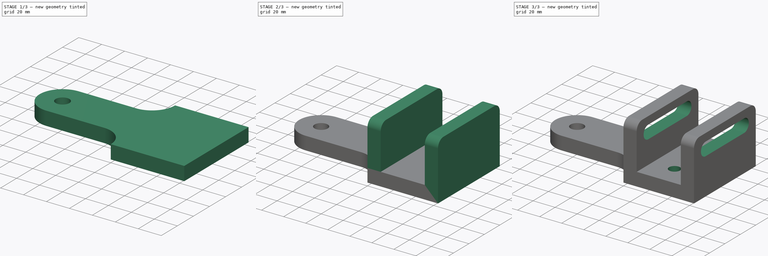
[diagram: build sequence overview — one tinted view per stage of 3, left to right]
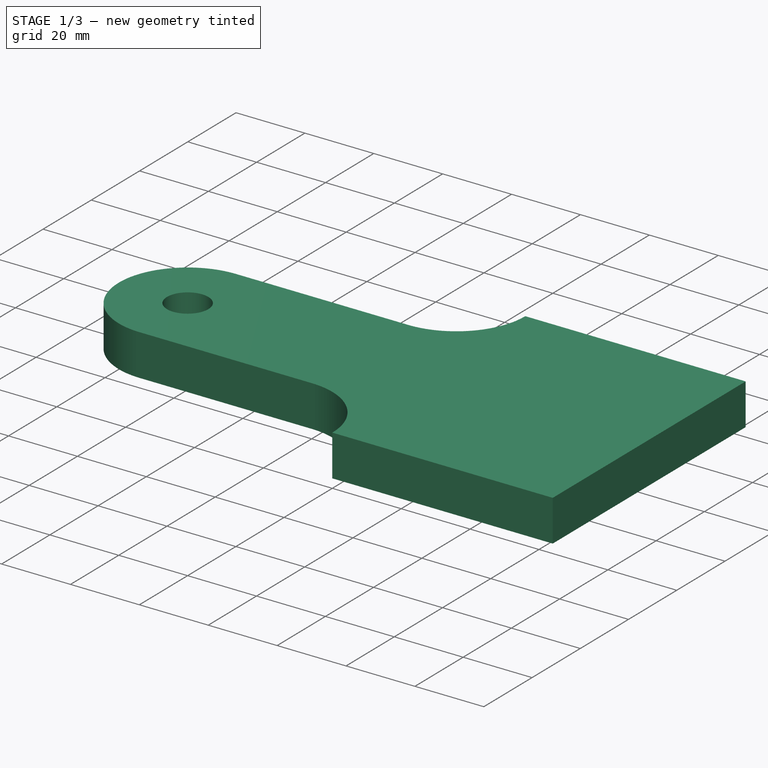
[diagram: stage 1 of 3 — iso view after this stage's code; geometry added in this stage tinted green]
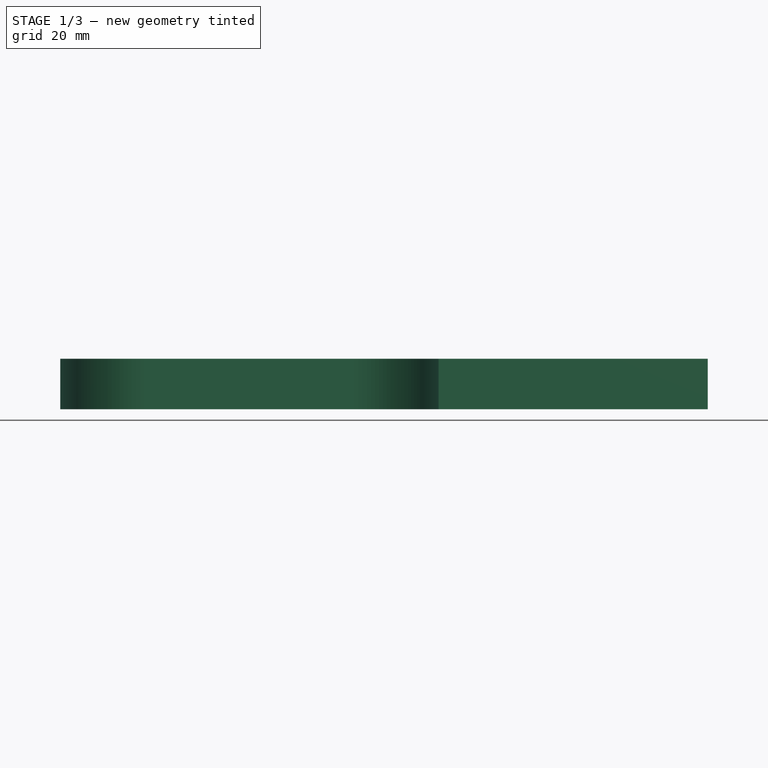
[diagram: stage 1 of 3 — front view after this stage's code; geometry added in this stage tinted green]
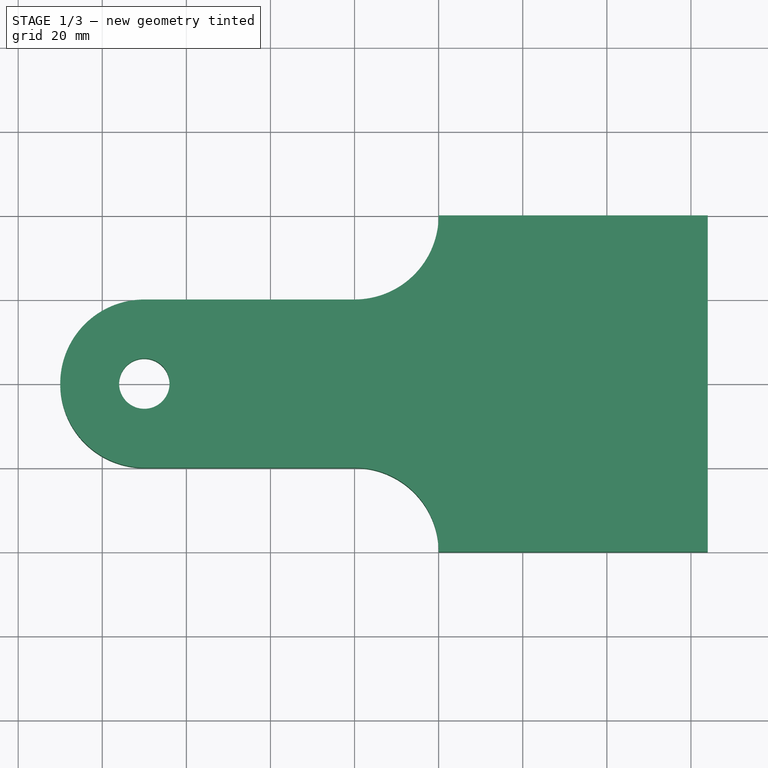
[diagram: stage 1 of 3 — top view after this stage's code; geometry added in this stage tinted green]
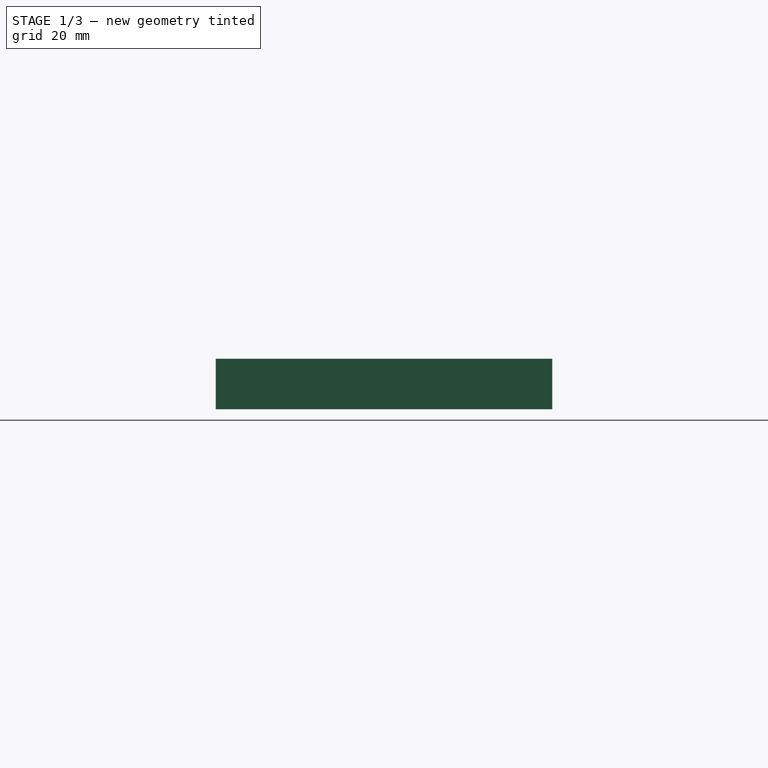
[diagram: stage 1 of 3 — right view after this stage's code; geometry added in this stage tinted green]
FCSTD DOCUMENT  (FreeCAD 0.17R9467 (Git))
Label: Beginner
License: All rights reserved
LicenseURL: http://en.wikipedia.org/wiki/All_rights_reserved
objects: Sketcher::SketchObject×6, PartDesign::Pocket×4, PartDesign::Pad×2, PartDesign::Plane×1, PartDesign::Body×1
note: 20 computed .brp shape members not serialized (recipe doc carries the construction recipe); baked Part::Feature solids carry a one-line shape summary decoded from their .brp

FEATURE [Sketcher::SketchObject] Sketch
  MapMode = 5
  Support = -> [XY_Plane]
  sketch-geometry (8):
    g0: LineSegment StartX=0 StartY=40 StartZ=0 EndX=64 EndY=40 EndZ=0
    g1: LineSegment StartX=64 StartY=40 StartZ=0 EndX=64 EndY=-40 EndZ=0
    g2: LineSegment StartX=64 StartY=-40 StartZ=0 EndX=0 EndY=-40 EndZ=0
    g3: ArcOfCircle CenterX=-20 CenterY=40 CenterZ=0 NormalX=0 NormalY=0 NormalZ=1 Radius=20 StartAngle=4.71239 EndAngle=6.28319
    g4: ArcOfCircle CenterX=-20 CenterY=-40 CenterZ=0 NormalX=0 NormalY=0 NormalZ=1 Radius=20 StartAngle=0 EndAngle=1.5708
    g5: ArcOfCircle CenterX=-70 CenterY=0 CenterZ=0 NormalX=0 NormalY=0 NormalZ=1 Radius=20 StartAngle=1.5708 EndAngle=4.71239
    g6: LineSegment StartX=-70 StartY=-20 StartZ=0 EndX=-20 EndY=-20 EndZ=0
    g7: LineSegment StartX=-70 StartY=20 StartZ=0 EndX=-19.9999 EndY=20 EndZ=0
  constraints (27):
    c: Coincident(g0,g1)
    c: Coincident(g1,g2)
    c: Horizontal(g0)
    c: Horizontal(g2)
    c: Vertical(g1)
    c: Coincident(g3,g0)
    c: Coincident(g4,g2)
    c: PointOnObject(g5,g-1)
    c: Horizontal(g6)
    c: Horizontal(g7)
    c: Coincident(g3,g7)
    c: Coincident(g5,g7)
    c: Coincident(g5,g6)
    c: Coincident(g4,g6)
    c: Tangent(g4,g6)
    c: Tangent(g3,g7)
    c: Perpendicular(g3,g0)
    c: Perpendicular(g4,g2)
    c: Tangent(g5,g6)
    c: Tangent(g7,g5)
    c: PointOnObject(g0,g-2)
    c: PointOnObject(g2,g-2)
    c: Symmetric(g0,g2,g-1)
    c: Radius(g4) = 20
    c: Radius(g5) = 20
    c: DistanceX(g5,g-1) = 70
    c: DistanceX(g0,g0) = 64
FEATURE [PartDesign::Pad] Pad
  Length = 12
  Length2 = 100
  Profile = -> Sketch
  Type = 0
FEATURE [PartDesign::Plane] DatumPlane
  MapMode = 5
  Placement = pos=(0,0,12) rot=(0,0,1;0rad)
  Support = -> [XY_Plane]
  superPlacement = pos=(0,0,12) rot=(0,0,1;0rad)
FEATURE [Sketcher::SketchObject] Sketch001
  MapMode = 5
  Placement = pos=(0,0,12) rot=(0,0,1;0rad)
  Support = -> [DatumPlane]
  sketch-geometry (1):
    g0: Circle CenterX=-70 CenterY=0 CenterZ=0 NormalX=0 NormalY=0 NormalZ=1 Radius=6
  constraints (3):
    c: PointOnObject(g0,g-1)
    c: DistanceX(g0,g-1) = 70
    c: Radius(g0) = 6
FEATURE [PartDesign::Pocket] Pocket
  BaseFeature = -> Pad
  Length = 5
  Profile = -> Sketch001
  Type = 1
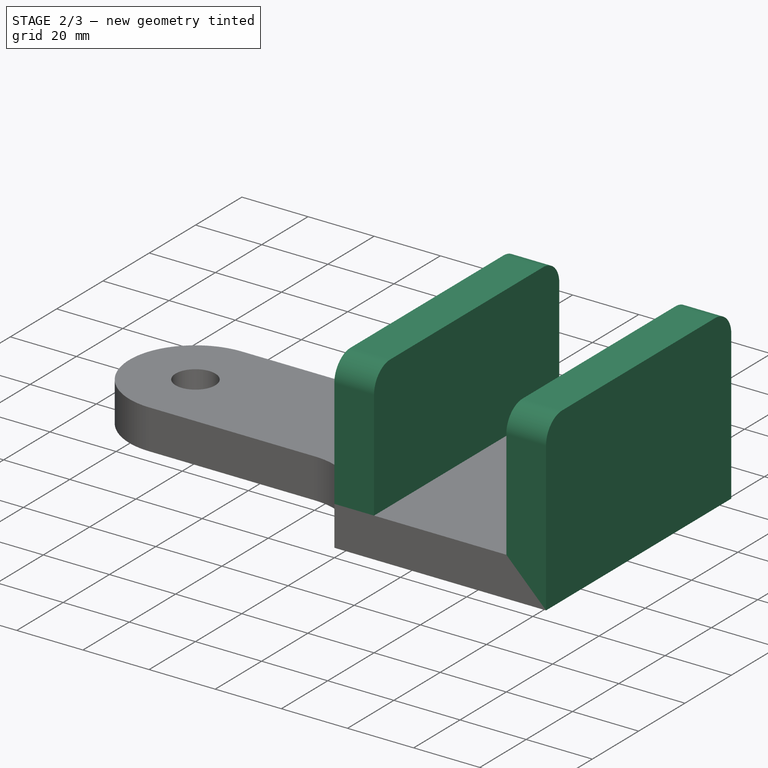
[diagram: stage 2 of 3 — iso view after this stage's code; geometry added in this stage tinted green]
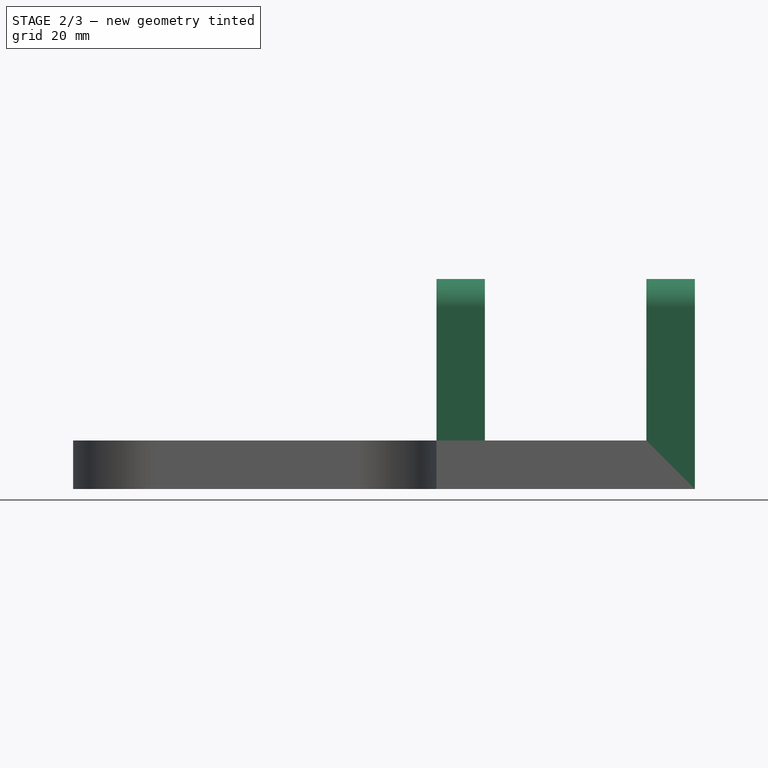
[diagram: stage 2 of 3 — front view after this stage's code; geometry added in this stage tinted green]
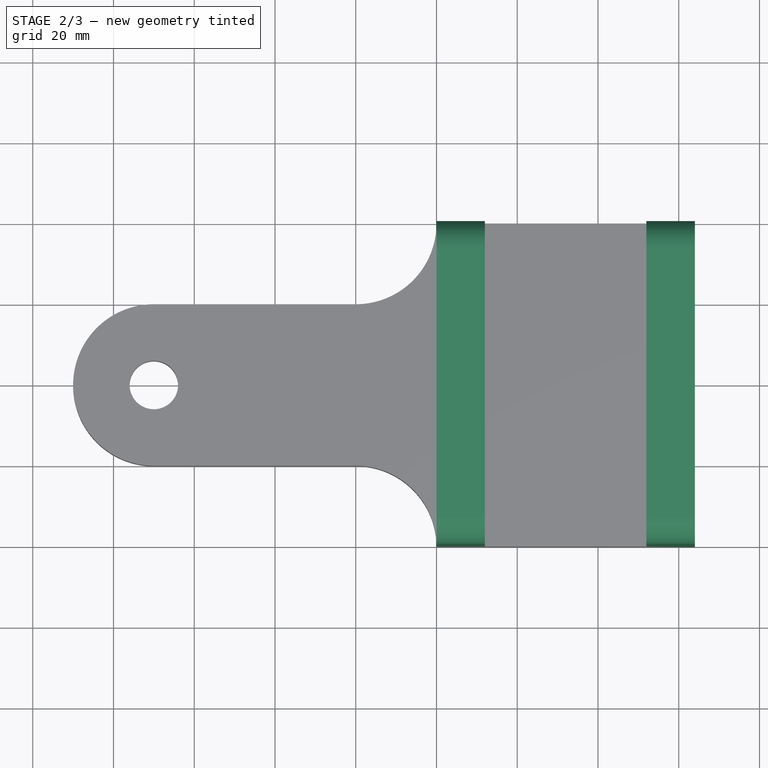
[diagram: stage 2 of 3 — top view after this stage's code; geometry added in this stage tinted green]
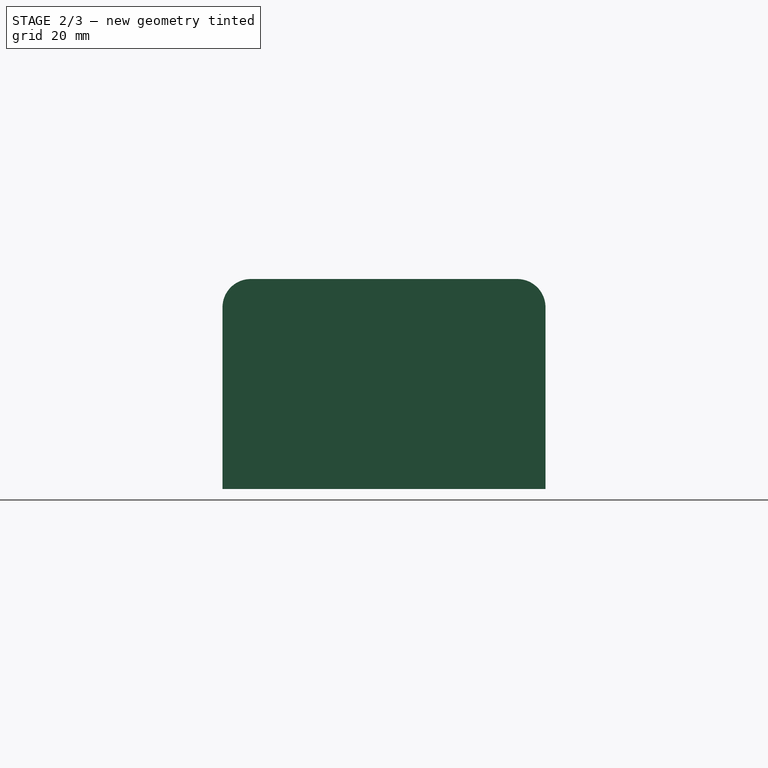
[diagram: stage 2 of 3 — right view after this stage's code; geometry added in this stage tinted green]
FEATURE [Sketcher::SketchObject] Sketch002
  MapMode = 5
  Placement = pos=(0,0,0) rot=(0.57735,0.57735,0.57735;2.0944rad)
  Support = -> [YZ_Plane]
  sketch-geometry (6):
    g0: LineSegment StartX=-40 StartY=0 StartZ=0 EndX=40 EndY=0 EndZ=0
    g1: LineSegment StartX=40 StartY=0 StartZ=0 EndX=40 EndY=45 EndZ=0
    g2: LineSegment StartX=33 StartY=52 StartZ=0 EndX=-33 EndY=52 EndZ=0
    g3: LineSegment StartX=-40 StartY=45 StartZ=0 EndX=-40 EndY=0 EndZ=0
    g4: ArcOfCircle CenterX=-33 CenterY=45 CenterZ=0 NormalX=0 NormalY=0 NormalZ=1 Radius=7 StartAngle=1.5708 EndAngle=3.14159
    g5: ArcOfCircle CenterX=33 CenterY=45 CenterZ=0 NormalX=0 NormalY=0 NormalZ=1 Radius=7 StartAngle=6.28318 EndAngle=7.85399
  constraints (20):
    c: Coincident(g0,g1)
    c: Coincident(g3,g0)
    c: Horizontal(g0)
    c: Horizontal(g2)
    c: Vertical(g1)
    c: Vertical(g3)
    c: PointOnObject(g0,g-1)
    c: Symmetric(g0,g0,g-2)
    c: Coincident(g4,g3)
    c: Coincident(g5,g1)
    c: DistanceX(g0,g0) = 80
    c: Tangent(g1,g5)
    c: Tangent(g3,g4)
    c: Coincident(g2,g4)
    c: Coincident(g2,g5)
    c: Tangent(g4,g2)
    c: Tangent(g5,g2)
    c: DistanceY(g2) = 52
    c: Radius(g4) = 7
    c: Radius(g5) = 7
FEATURE [PartDesign::Pad] Pad001
  BaseFeature = -> Pocket
  Length = 64
  Length2 = 100
  Profile = -> Sketch002
  Type = 0
FEATURE [Sketcher::SketchObject] Sketch003
  MapMode = 5
  Placement = pos=(0,0,0) rot=(1,0,0;1.5708rad)
  Support = -> [XZ_Plane]
  sketch-geometry (4):
    g0: LineSegment StartX=12 StartY=52 StartZ=0 EndX=52 EndY=52 EndZ=0
    g1: LineSegment StartX=52 StartY=52 StartZ=0 EndX=52 EndY=12 EndZ=0
    g2: LineSegment StartX=52 StartY=12 StartZ=0 EndX=12 EndY=12 EndZ=0
    g3: LineSegment StartX=12 StartY=12 StartZ=0 EndX=12 EndY=52 EndZ=0
  constraints (12):
    c: Coincident(g0,g1)
    c: Coincident(g1,g2)
    c: Coincident(g2,g3)
    c: Coincident(g3,g0)
    c: Horizontal(g0)
    c: Horizontal(g2)
    c: Vertical(g1)
    c: Vertical(g3)
    c: DistanceY(g2) = 12
    c: DistanceX(g2) = 12
    c: DistanceX(g2,g2) = 40
    c: DistanceY(g3,g3) = 40
FEATURE [PartDesign::Pocket] Pocket001
  BaseFeature = -> Pad001
  Length = 5
  Midplane = true
  Profile = -> Sketch003
  Type = 1
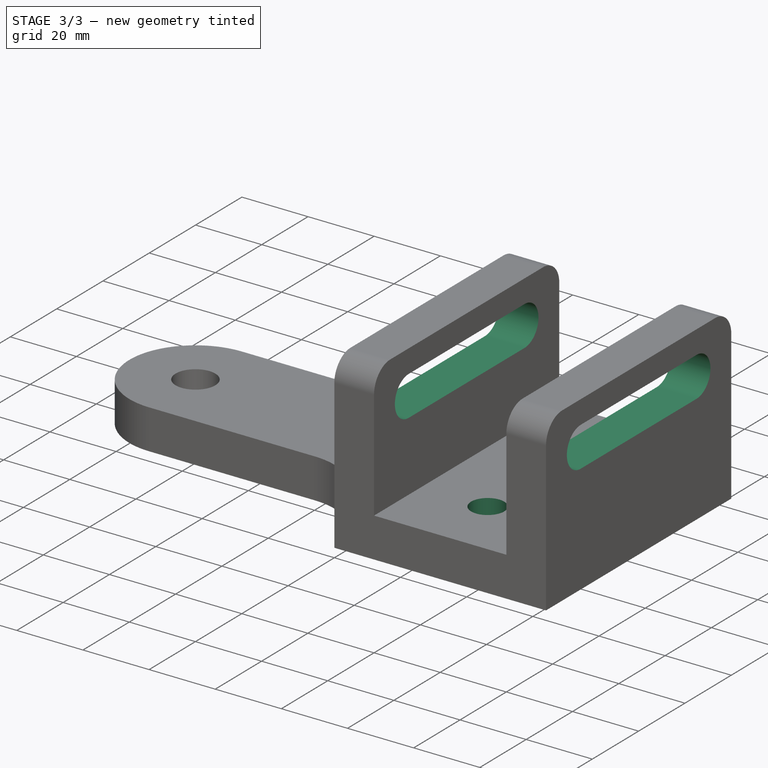
[diagram: stage 3 of 3 — iso view after this stage's code; geometry added in this stage tinted green]
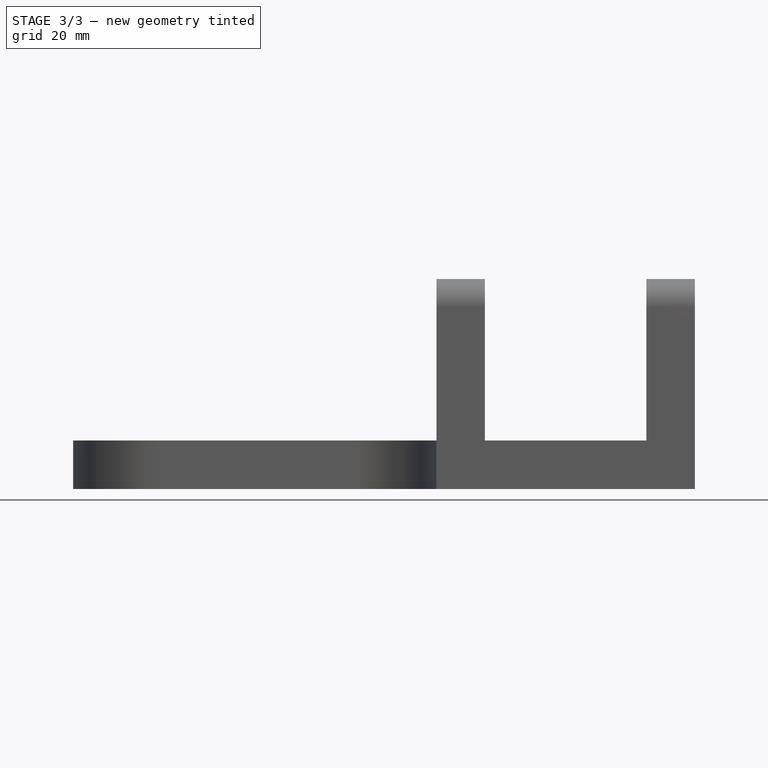
[diagram: stage 3 of 3 — front view after this stage's code; geometry added in this stage tinted green]
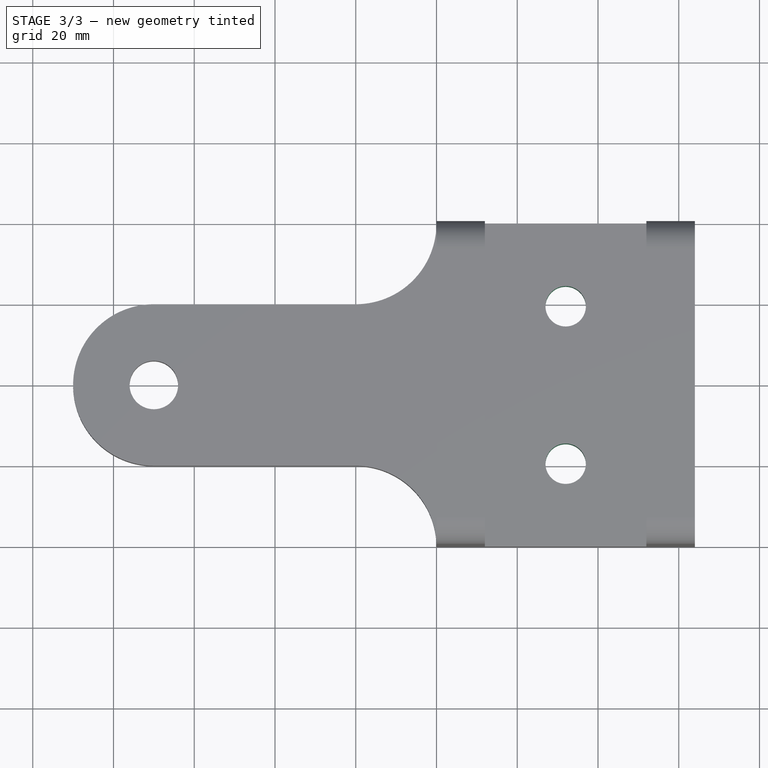
[diagram: stage 3 of 3 — top view after this stage's code; geometry added in this stage tinted green]
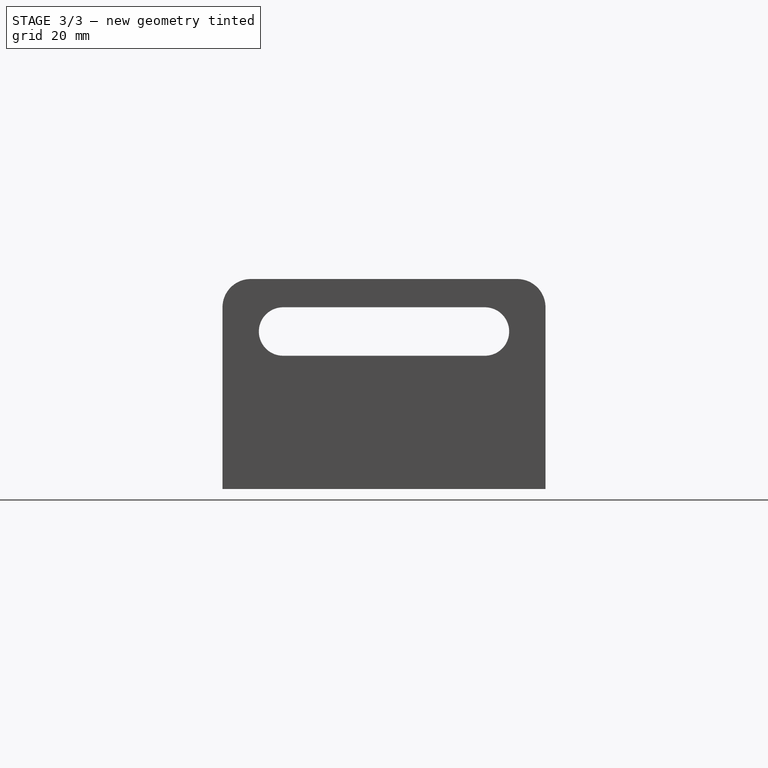
[diagram: stage 3 of 3 — right view after this stage's code; geometry added in this stage tinted green]
FEATURE [Sketcher::SketchObject] Sketch004
  MapMode = 5
  Placement = pos=(0,0,0) rot=(0.57735,0.57735,0.57735;2.0944rad)
  Support = -> [YZ_Plane]
  sketch-geometry (4):
    g0: ArcOfCircle CenterX=-25 CenterY=39 CenterZ=0 NormalX=0 NormalY=0 NormalZ=1 Radius=6 StartAngle=1.5708 EndAngle=4.71239
    g1: ArcOfCircle CenterX=25 CenterY=39 CenterZ=0 NormalX=0 NormalY=0 NormalZ=1 Radius=6 StartAngle=4.71239 EndAngle=7.85398
    g2: LineSegment StartX=-25 StartY=33 StartZ=0 EndX=25 EndY=33 EndZ=0
    g3: LineSegment StartX=-25 StartY=45 StartZ=0 EndX=25 EndY=45 EndZ=0
  constraints (10):
    c: Tangent(g0,g3) = 1.5708
    c: Tangent(g0,g2) = -1.5708
    c: Tangent(g2,g1) = -1.5708
    c: Tangent(g3,g1) = 1.5708
    c: Horizontal(g2)
    c: Equal(g0,g1)
    c: Symmetric(g1,g0,g-2)
    c: Radius(g0) = 6
    c: DistanceY(g0) = 45
    c: DistanceX(g3,g3) = 50
FEATURE [PartDesign::Pocket] Pocket002
  BaseFeature = -> Pocket001
  Length = 5
  Profile = -> Sketch004
  Reversed = true
  Type = 1
FEATURE [Sketcher::SketchObject] Sketch005
  MapMode = 5
  Placement = pos=(0,0,12) rot=(0,0,1;0rad)
  Support = -> [DatumPlane]
  sketch-geometry (3):
    g0: Circle CenterX=32 CenterY=19.5 CenterZ=0 NormalX=0 NormalY=0 NormalZ=1 Radius=5
    g1: Circle CenterX=32 CenterY=-19.5 CenterZ=0 NormalX=0 NormalY=0 NormalZ=1 Radius=5
    g2: LineSegment [constr] StartX=32 StartY=-19.5 StartZ=0 EndX=32 EndY=19.5 EndZ=0
  constraints (8):
    c: Vertical(g2)
    c: Coincident(g0,g2)
    c: Coincident(g1,g2)
    c: Equal(g0,g1)
    c: DistanceY(g2,g2) = 39
    c: Radius(g0) = 5
    c: DistanceX(g0) = 32
    c: Symmetric(g0,g1,g-1)
FEATURE [PartDesign::Pocket] Pocket003
  BaseFeature = -> Pocket002
  Length = 5
  Profile = -> Sketch005
  Type = 1
FEATURE [PartDesign::Body] Body
  Model = -> [Sketch,Pad,DatumPlane,Sketch001,Pocket,Sketch002,Pad001,Sketch003,Pocket001,Sketch004,Pocket002,Sketch005,Pocket003]
  Origin = -> BodyOrigin
  Tip = -> Pocket003
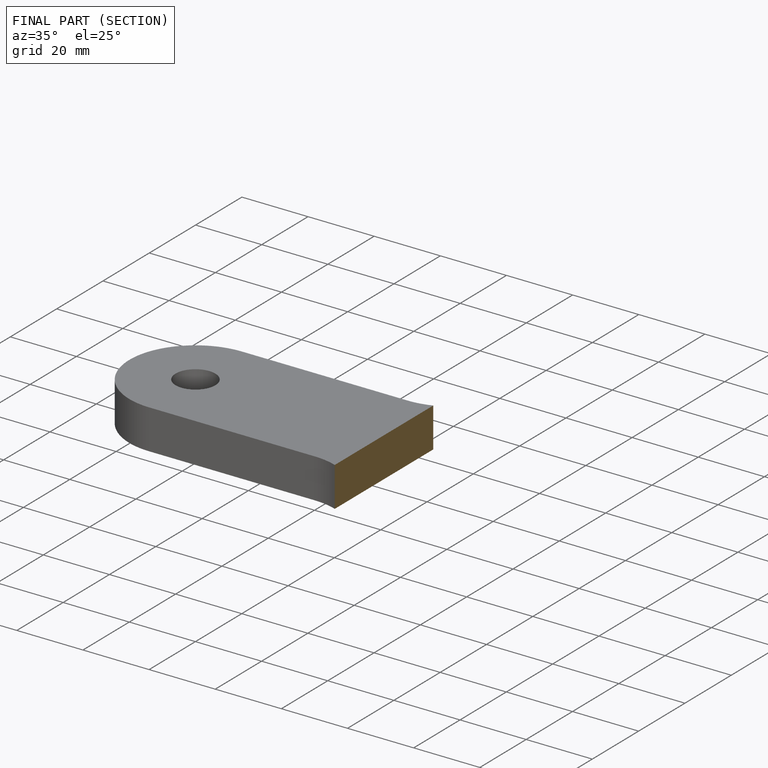
[diagram: finished part — half-section view (interior)]
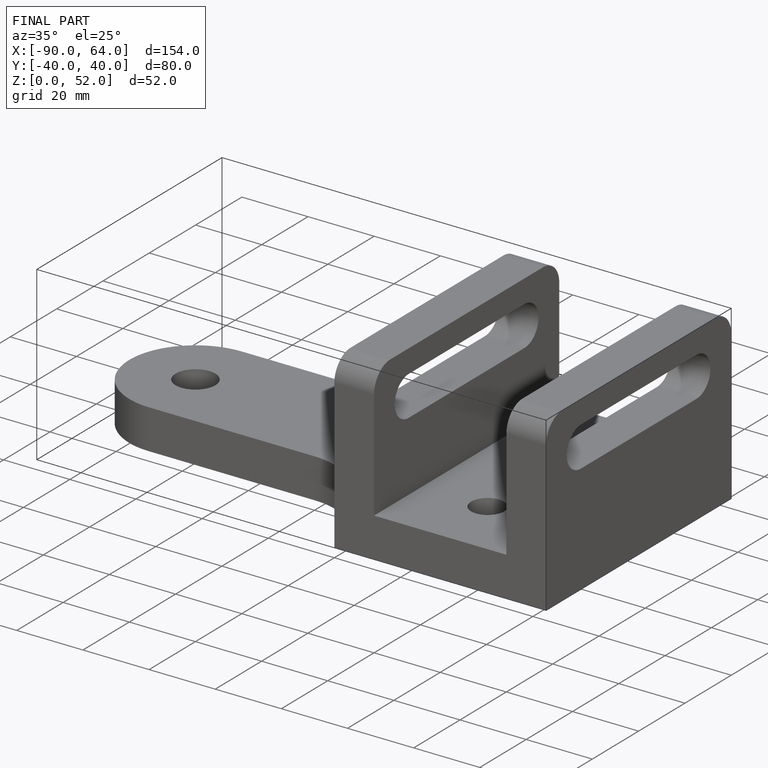
[diagram: finished part — iso view with bounding-box wireframe]
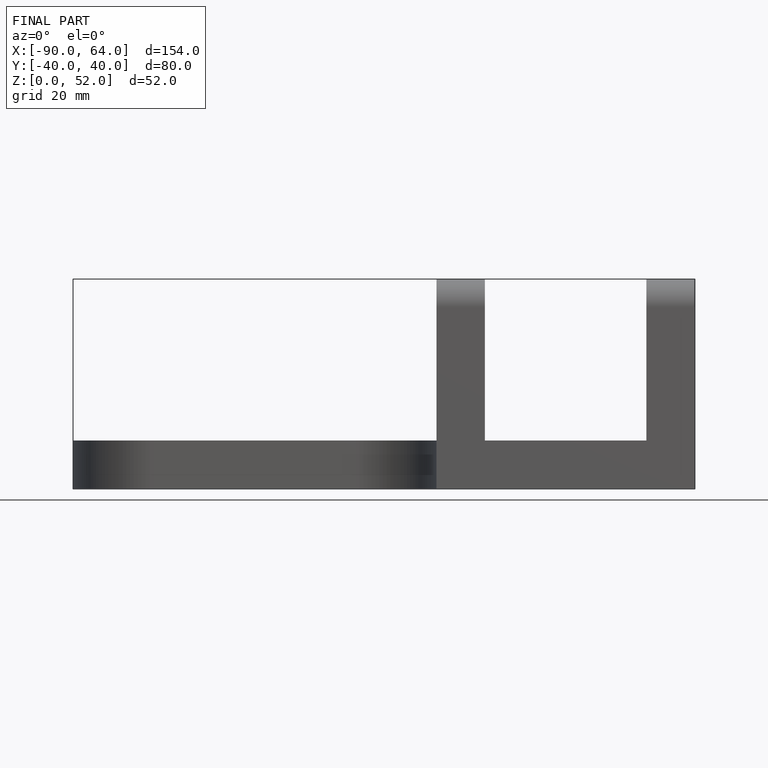
[diagram: finished part — front view with bounding-box wireframe]
